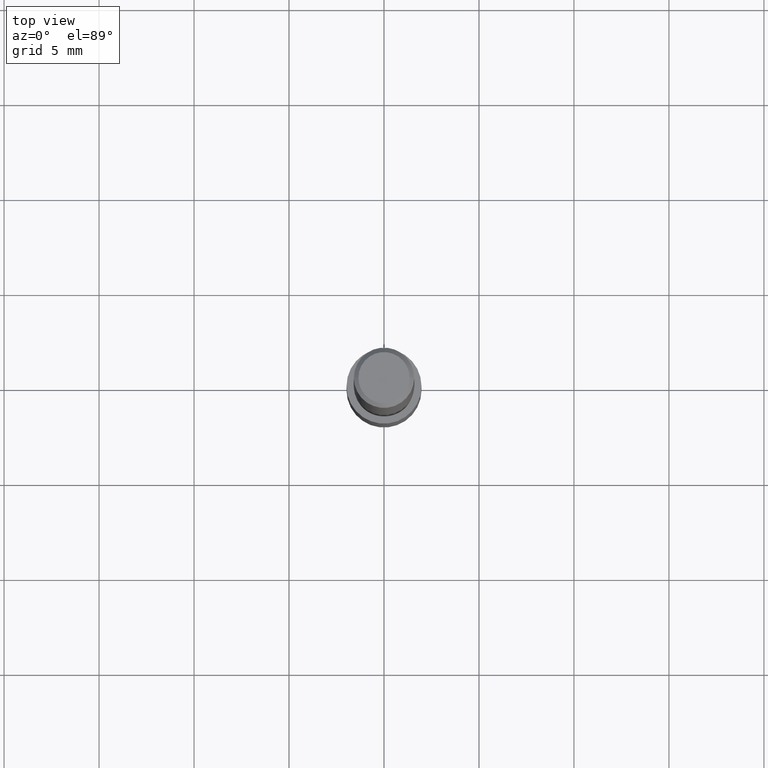
[diagram: clean part render]
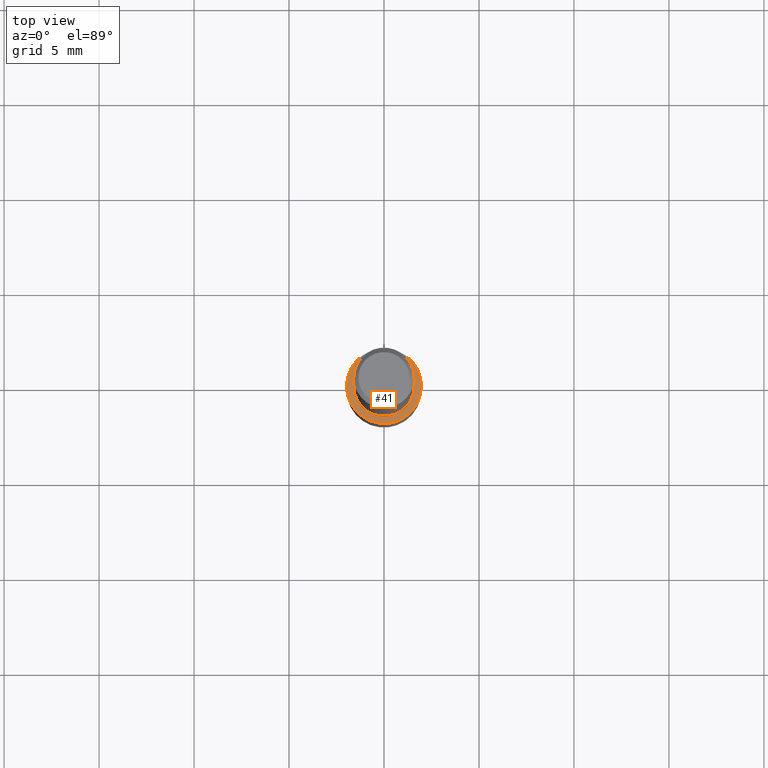
[diagram: same view with one face highlighted and labeled with its STEP entity id]
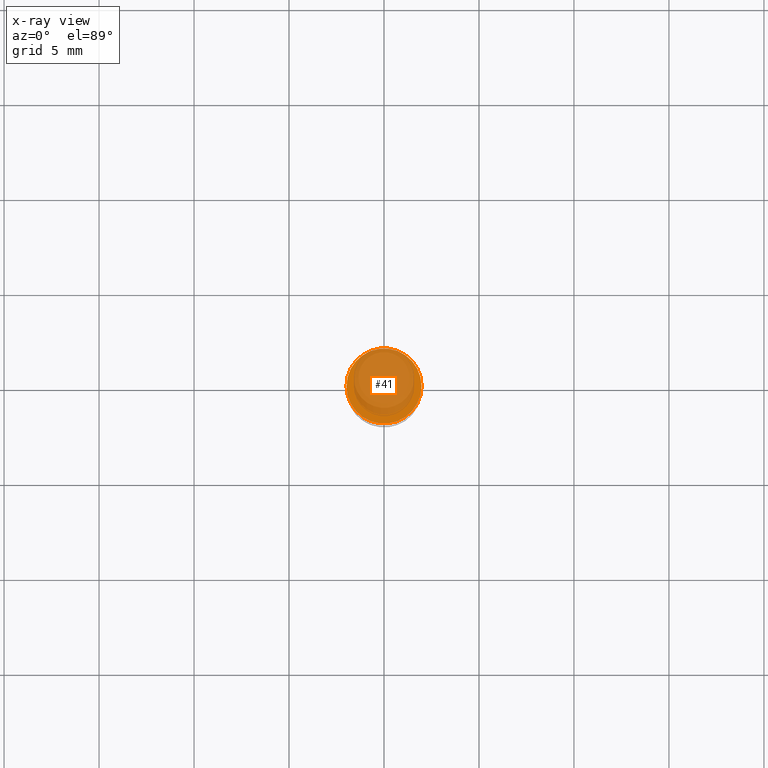
[diagram: x-ray of the same camera — body ghosted, the highlighted face saturated]
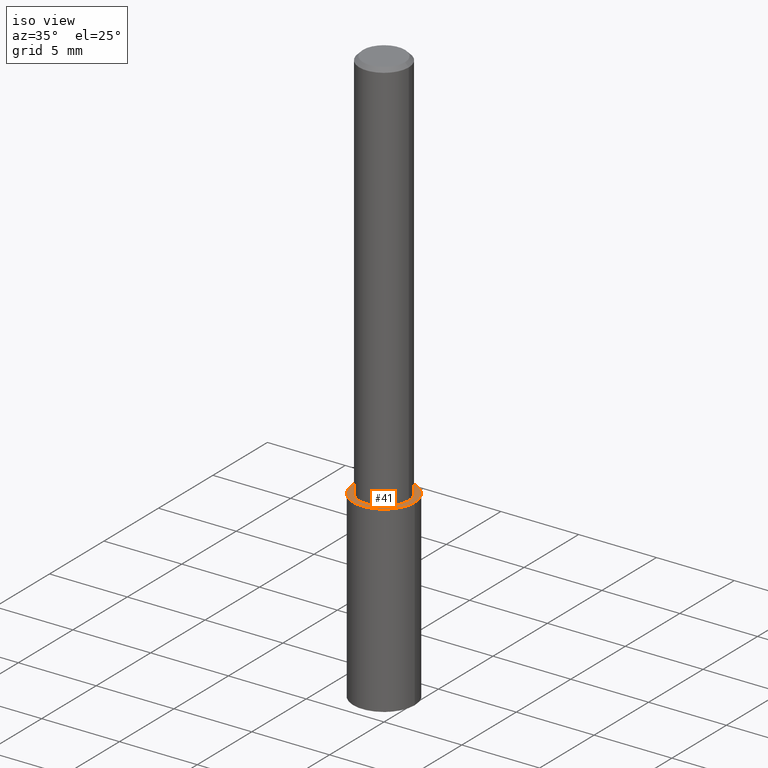
[diagram: same view with one face highlighted and labeled with its STEP entity id]
A machine part, top view. The second image highlights one B-rep face of the part: STEP entity #41.
The next image is the same camera in x-ray: the body ghosted, the highlighted face saturated — about 74% of this face is hidden behind the body in this view.
A second angle (iso view) of the same face is appended — the face is thin or edge-on in the first view.
In plain terms, the highlighted planar face has unit normal (0, -0, -1).
Its self-contained STEP definition (entity closure, byte-faithful):
#2 = VERTEX_POINT ( 'NONE', #320 ) ;
#9 = EDGE_LOOP ( 'NONE', ( #219, #215 ) ) ;
#14 = PLANE ( 'NONE',  #42 ) ;
#33 = CARTESIAN_POINT ( 'NONE',  ( 0.07774999999999999967, -4.034406687033253308E-15, -1.000000000000000222 ) ) ;
#41 = ADVANCED_FACE ( 'NONE', ( #192 ), #14, .F. ) ;
#42 = AXIS2_PLACEMENT_3D ( 'NONE', #116, #297, #59 ) ;
#59 = DIRECTION ( 'NONE',  ( -1.000000000000000000, 6.982962677686265922E-15, -4.876176775795935793E-29 ) ) ;
#81 = CARTESIAN_POINT ( 'NONE',  ( 2.445468806185136877E-29, -3.491481338843145977E-15, -1.000000000000000222 ) ) ;
#113 = AXIS2_PLACEMENT_3D ( 'NONE', #81, #339, #114 ) ;
#114 = DIRECTION ( 'NONE',  ( 1.000000000000000000, -6.982962677686266711E-15, 0.000000000000000000 ) ) ;
#116 = CARTESIAN_POINT ( 'NONE',  ( 3.672246464118877358E-29, -1.734665908833973445E-15, -1.000000000000000222 ) ) ;
#186 = DIRECTION ( 'NONE',  ( 1.000000000000000000, -6.982962677686266711E-15, 0.000000000000000000 ) ) ;
#192 = FACE_OUTER_BOUND ( 'NONE', #9, .T. ) ;
#203 = AXIS2_PLACEMENT_3D ( 'NONE', #298, #230, #186 ) ;
#215 = ORIENTED_EDGE ( 'NONE', *, *, #301, .T. ) ;
#219 = ORIENTED_EDGE ( 'NONE', *, *, #242, .T. ) ;
#226 = CIRCLE ( 'NONE', #203, 0.07774999999999999967 ) ;
#230 = DIRECTION ( 'NONE',  ( -2.445468806185136597E-29, 3.491481338843145583E-15, 1.000000000000000000 ) ) ;
#241 = VERTEX_POINT ( 'NONE', #33 ) ;
#242 = EDGE_CURVE ( 'NONE', #241, #2, #226, .T. ) ;
#297 = DIRECTION ( 'NONE',  ( 2.438088387897960049E-29, -3.491481338843145188E-15, -1.000000000000000000 ) ) ;
#298 = CARTESIAN_POINT ( 'NONE',  ( 2.445468806185136877E-29, -3.491481338843145977E-15, -1.000000000000000222 ) ) ;
#300 = CIRCLE ( 'NONE', #113, 0.07774999999999999967 ) ;
#301 = EDGE_CURVE ( 'NONE', #2, #241, #300, .T. ) ;
#320 = CARTESIAN_POINT ( 'NONE',  ( -0.07774999999999999967, -3.748612134583574919E-15, -1.000000000000000222 ) ) ;
#339 = DIRECTION ( 'NONE',  ( -2.445468806185136597E-29, 3.491481338843145583E-15, 1.000000000000000000 ) ) ;